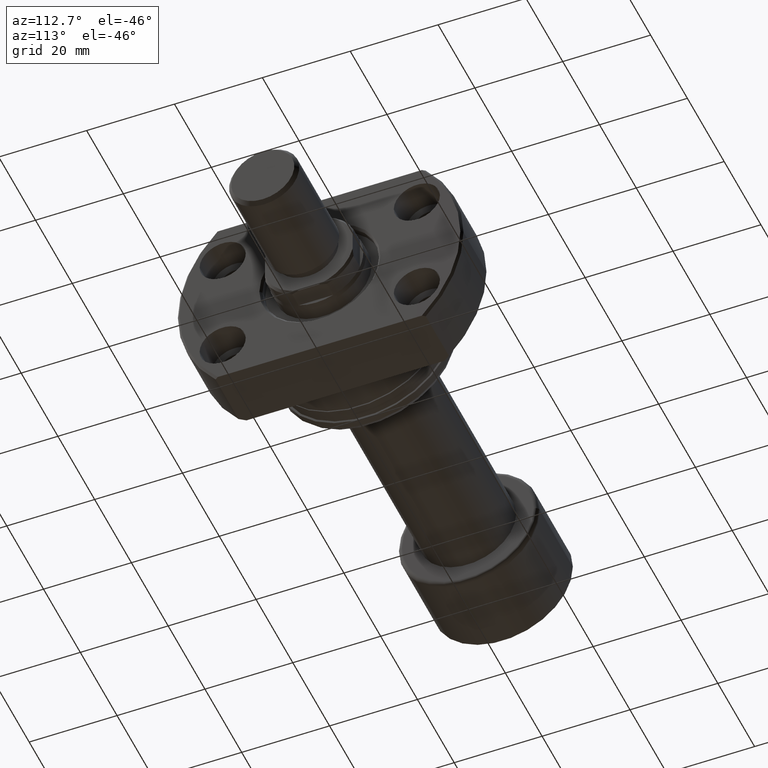
[diagram: clean part render]
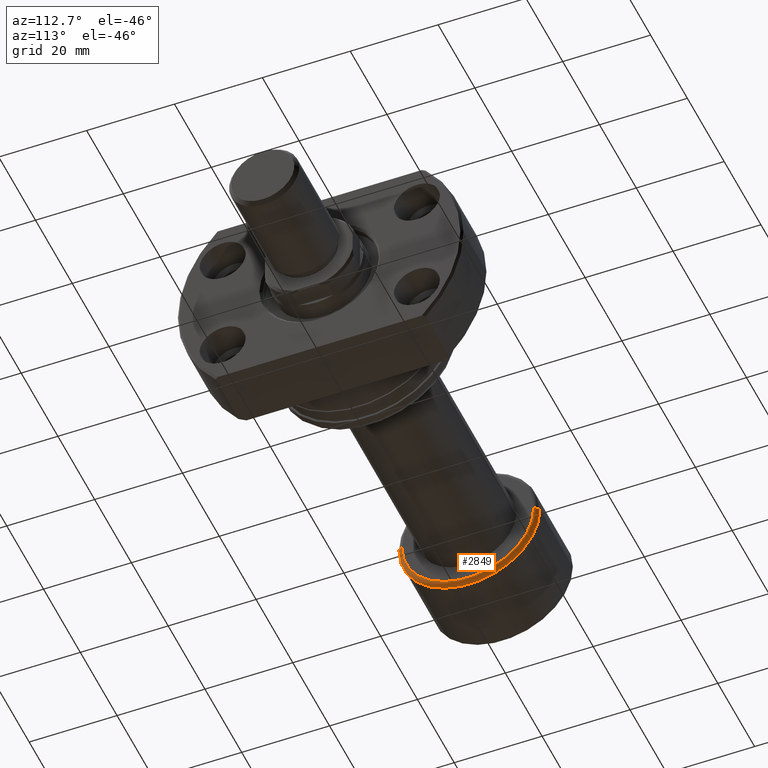
[diagram: same view with one face highlighted and labeled with its STEP entity id]
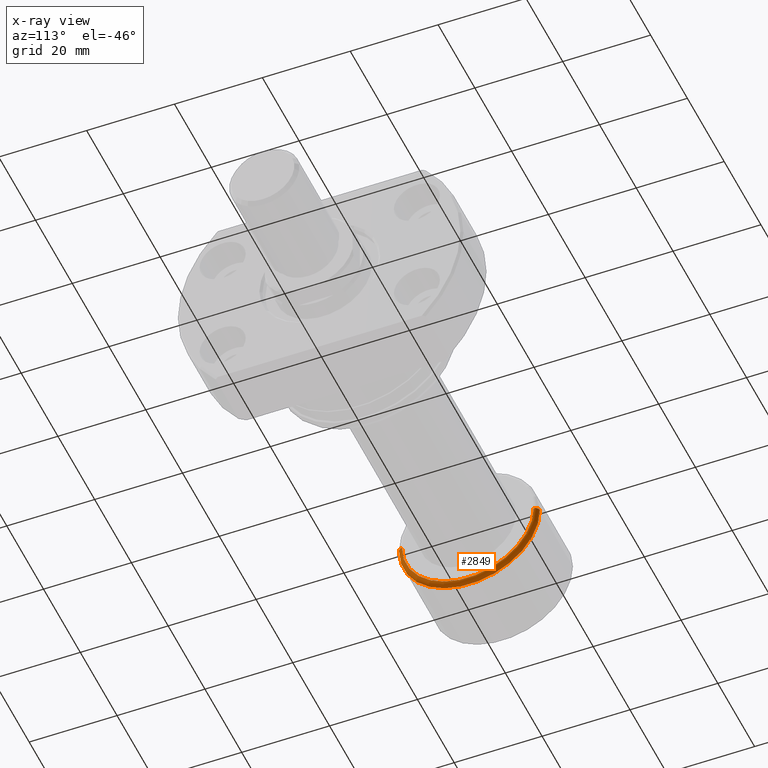
[diagram: x-ray of the same camera — body ghosted, the highlighted face saturated]
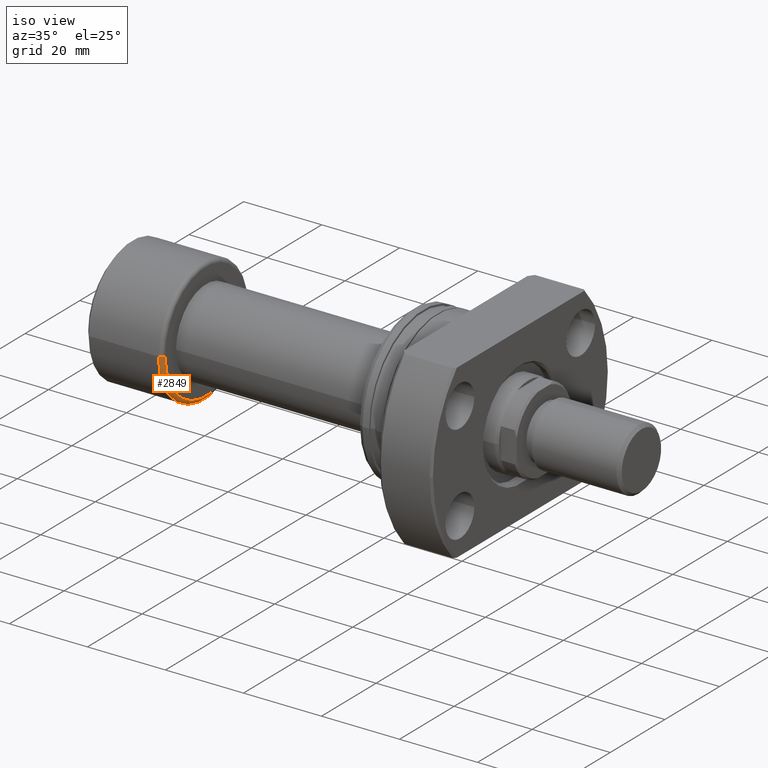
[diagram: same view with one face highlighted and labeled with its STEP entity id]
A machine part, auxiliary view. The second image highlights one B-rep face of the part: STEP entity #2849.
The next image is the same camera in x-ray: the body ghosted, the highlighted face saturated — about 0% of this face is hidden behind the body in this view.
A second angle (iso view) of the same face is appended — the face is thin or edge-on in the first view.
In plain terms, the highlighted toroidal blend (fillet) surface has major radius 15 mm and minor (blend) radius 1 mm.
Its self-contained STEP definition (entity closure, byte-faithful):
#189 = CARTESIAN_POINT ( 'NONE',  ( 20.39999999999999503, -15.00000000000000000, 0.000000000000000000 ) ) ;
#437 = VERTEX_POINT ( 'NONE', #3398 ) ;
#496 = CARTESIAN_POINT ( 'NONE',  ( 19.39999999999999503, -16.00000000000000000, 0.000000000000000000 ) ) ;
#510 = DIRECTION ( 'NONE',  ( -1.000000000000000000, 0.000000000000000000, 0.000000000000000000 ) ) ;
#543 = DIRECTION ( 'NONE',  ( -1.000000000000000000, -1.069542322069065801E-17, -0.000000000000000000 ) ) ;
#613 = ORIENTED_EDGE ( 'NONE', *, *, #1337, .F. ) ;
#803 = EDGE_LOOP ( 'NONE', ( #2604, #2961, #2813, #613 ) ) ;
#925 = EDGE_CURVE ( 'NONE', #437, #2548, #2537, .T. ) ;
#930 = AXIS2_PLACEMENT_3D ( 'NONE', #2226, #1058, #1336 ) ;
#1034 = CARTESIAN_POINT ( 'NONE',  ( 19.39999999999999503, 16.00000000000000000, 1.959434878635765131E-15 ) ) ;
#1058 = DIRECTION ( 'NONE',  ( -1.000000000000000000, -1.069542322069065801E-17, -0.000000000000000000 ) ) ;
#1158 = DIRECTION ( 'NONE',  ( 0.000000000000000000, -1.000000000000000000, -1.224646799147353454E-16 ) ) ;
#1336 = DIRECTION ( 'NONE',  ( 0.000000000000000000, -1.000000000000000000, 0.000000000000000000 ) ) ;
#1337 = EDGE_CURVE ( 'NONE', #1382, #1832, #1528, .T. ) ;
#1348 = AXIS2_PLACEMENT_3D ( 'NONE', #3102, #543, #1676 ) ;
#1382 = VERTEX_POINT ( 'NONE', #1034 ) ;
#1489 = DIRECTION ( 'NONE',  ( 1.069542322069065801E-17, -1.000000000000000000, 0.000000000000000000 ) ) ;
#1528 = CIRCLE ( 'NONE', #930, 16.00000000000000000 ) ;
#1596 = CIRCLE ( 'NONE', #2299, 1.000000000000000888 ) ;
#1656 = CIRCLE ( 'NONE', #2424, 1.000000000000000888 ) ;
#1676 = DIRECTION ( 'NONE',  ( 0.000000000000000000, -1.000000000000000000, 0.000000000000000000 ) ) ;
#1701 = DIRECTION ( 'NONE',  ( 1.309811581274509052E-33, -1.224646799147353207E-16, 1.000000000000000000 ) ) ;
#1832 = VERTEX_POINT ( 'NONE', #496 ) ;
#1945 = CARTESIAN_POINT ( 'NONE',  ( 19.39999999999999503, -15.00000000000000000, 0.000000000000000000 ) ) ;
#2058 = TOROIDAL_SURFACE ( 'NONE', #3086, 15.00000000000000000, 1.000000000000000888 ) ;
#2226 = CARTESIAN_POINT ( 'NONE',  ( 19.39999999999999503, 2.074912104813986935E-16, 0.000000000000000000 ) ) ;
#2299 = AXIS2_PLACEMENT_3D ( 'NONE', #1945, #3304, #510 ) ;
#2424 = AXIS2_PLACEMENT_3D ( 'NONE', #3123, #1701, #1158 ) ;
#2537 = CIRCLE ( 'NONE', #1348, 15.00000000000000000 ) ;
#2548 = VERTEX_POINT ( 'NONE', #189 ) ;
#2604 = ORIENTED_EDGE ( 'NONE', *, *, #3164, .F. ) ;
#2813 = ORIENTED_EDGE ( 'NONE', *, *, #3394, .T. ) ;
#2849 = ADVANCED_FACE ( 'NONE', ( #3450 ), #2058, .T. ) ;
#2890 = CARTESIAN_POINT ( 'NONE',  ( 19.39999999999999503, 0.000000000000000000, 0.000000000000000000 ) ) ;
#2961 = ORIENTED_EDGE ( 'NONE', *, *, #925, .T. ) ;
#3086 = AXIS2_PLACEMENT_3D ( 'NONE', #2890, #3210, #1489 ) ;
#3102 = CARTESIAN_POINT ( 'NONE',  ( 20.39999999999999503, 2.181866337020893623E-16, 0.000000000000000000 ) ) ;
#3123 = CARTESIAN_POINT ( 'NONE',  ( 19.39999999999999503, 15.00000000000000000, 1.836970198721029589E-15 ) ) ;
#3164 = EDGE_CURVE ( 'NONE', #437, #1382, #1656, .T. ) ;
#3210 = DIRECTION ( 'NONE',  ( -1.000000000000000000, -1.069542322069065801E-17, -0.000000000000000000 ) ) ;
#3304 = DIRECTION ( 'NONE',  ( 0.000000000000000000, 0.000000000000000000, -1.000000000000000000 ) ) ;
#3394 = EDGE_CURVE ( 'NONE', #2548, #1832, #1596, .T. ) ;
#3398 = CARTESIAN_POINT ( 'NONE',  ( 20.39999999999999503, 15.00000000000000000, 1.898202538678397163E-15 ) ) ;
#3450 = FACE_OUTER_BOUND ( 'NONE', #803, .T. ) ;